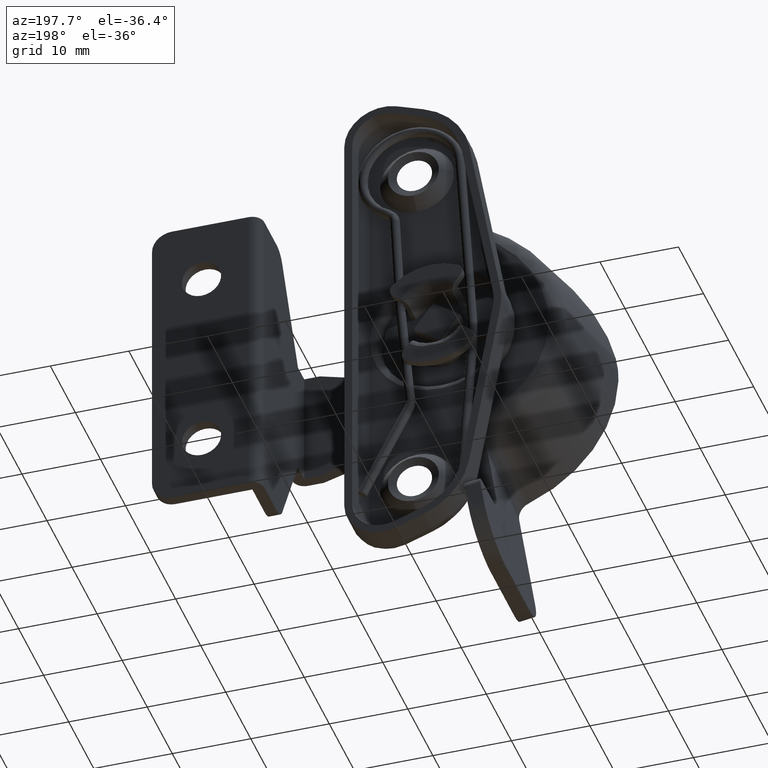
[diagram: clean part render]
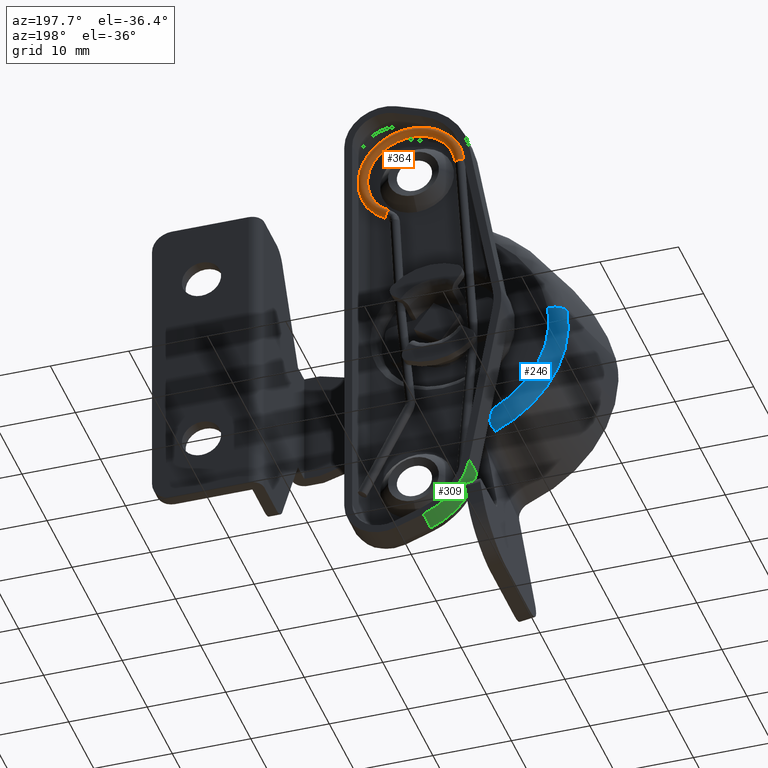
[diagram: same view with three faces highlighted in distinct colors, each labeled with its STEP entity id]
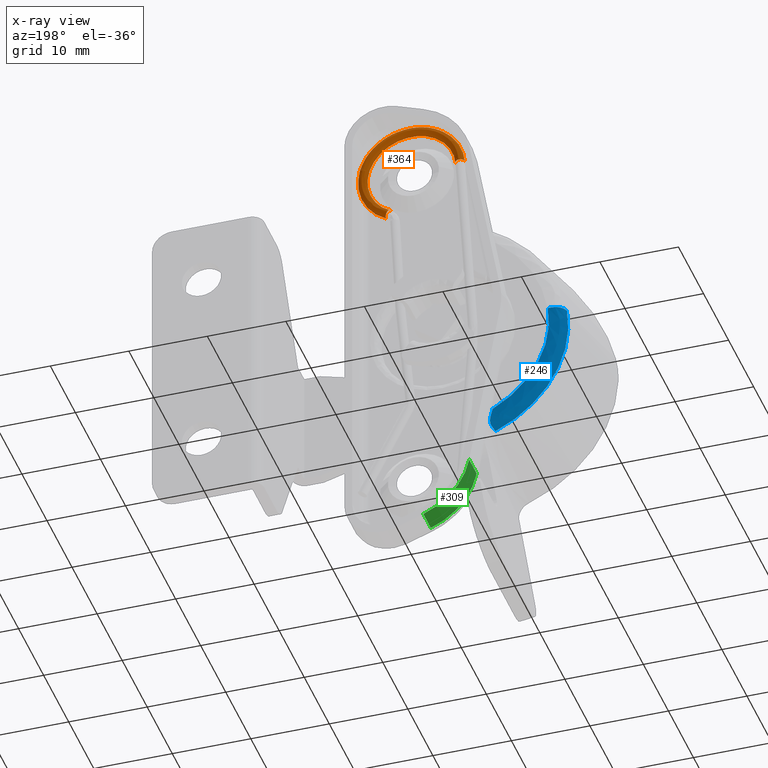
[diagram: x-ray of the same camera — body ghosted, the three highlighted faces saturated]
A machine part, auxiliary view with three faces highlighted in distinct colors.
The next image is the same camera in x-ray (body ghosted, the three faces saturated) — at least one of them is partly hidden behind the body in this view.
Their STEP definitions:

[orange] entity #364 — the highlighted face is a freeform B-spline surface patch.
#364=ADVANCED_FACE('',(#2195),#2194,.T.);
#2194=( BOUNDED_SURFACE() B_SPLINE_SURFACE( 2,2,((#4218,#4219,#4220,#4221,#4222,#4223,#4224),(#4225,#4226,#4227,#4228,#4229,#4230,#4231),(#4232,#4233,#4234,#4235,#4236,#4237,#4238),(#4239,#4240,#4241,#4242,#4243,#4244,#4245),(#4246,#4247,#4248,#4249,#4250,#4251,#4252)), .UNSPECIFIED.,.F.,.F.,.F.) B_SPLINE_SURFACE_WITH_KNOTS((3,2,3),(3,2,2,3),(1.77635683940E-15,1.57079632679E+00,3.14159265359E+00),(5.07392071400E-01,1.57079632679E+00,3.14159265359E+00,4.64179921726E+00), .UNSPECIFIED. ) GEOMETRIC_REPRESENTATION_ITEM() RATIONAL_B_SPLINE_SURFACE(((8.71902212440E-01,8.01715925897E-01,1.00000000000E+00,7.07106781187E-01,1.00000000000E+00,7.20269062370E-01,9.74858432901E-01),(6.16527966948E-01,5.66898767787E-01,7.07106781187E-01,5.00000000000E-01,7.07106781187E-01,5.09307138281E-01,6.89329008601E-01),(8.71902212440E-01,8.01715925897E-01,1.00000000000E+00,7.07106781187E-01,1.00000000000E+00,7.20269062370E-01,9.74858432901E-01),(6.16527966948E-01,5.66898767787E-01,7.07106781187E-01,5.00000000000E-01,7.07106781187E-01,5.09307138281E-01,6.89329008601E-01),(8.71902212440E-01,8.01715925897E-01,1.00000000000E+00,7.07106781187E-01,1.00000000000E+00,7.20269062370E-01,9.74858432901E-01))) REPRESENTATION_ITEM('') SURFACE() );
#2195=FACE_OUTER_BOUND('',#4253,.T.);
#4218=CARTESIAN_POINT('',(-1.55743589744E+01,6.10000000000E+00,1.69137457477E+01));
#4219=CARTESIAN_POINT('',(-1.20000000000E+01,6.10000000000E+00,1.88397579854E+01));
#4220=CARTESIAN_POINT('',(-1.20000000000E+01,6.10000000000E+00,2.29000000000E+01));
#4221=CARTESIAN_POINT('',(-1.20000000000E+01,6.10000000000E+00,2.97000000000E+01));
#4222=CARTESIAN_POINT('',(-1.88000000000E+01,6.10000000000E+00,2.97000000000E+01));
#4223=CARTESIAN_POINT('',(-2.51757361788E+01,6.10000000000E+00,2.97000000000E+01));
#4224=CARTESIAN_POINT('',(-2.55859132420E+01,6.10000000000E+00,2.33374716819E+01));
#4225=CARTESIAN_POINT('',(-1.55743589744E+01,6.70000000000E+00,1.69137457477E+01));
#4226=CARTESIAN_POINT('',(-1.20000000000E+01,6.70000000000E+00,1.88397579854E+01));
#4227=CARTESIAN_POINT('',(-1.20000000000E+01,6.70000000000E+00,2.29000000000E+01));
#4228=CARTESIAN_POINT('',(-1.20000000000E+01,6.70000000000E+00,2.97000000000E+01));
#4229=CARTESIAN_POINT('',(-1.88000000000E+01,6.70000000000E+00,2.97000000000E+01));
#4230=CARTESIAN_POINT('',(-2.51757361788E+01,6.70000000000E+00,2.97000000000E+01));
#4231=CARTESIAN_POINT('',(-2.55859132420E+01,6.70000000000E+00,2.33374716819E+01));
#4232=CARTESIAN_POINT('',(-1.58589743590E+01,6.70000000000E+00,1.74419446523E+01));
#4233=CARTESIAN_POINT('',(-1.26000000000E+01,6.70000000000E+00,1.91980146337E+01));
#4234=CARTESIAN_POINT('',(-1.26000000000E+01,6.70000000000E+00,2.29000000000E+01));
#4235=CARTESIAN_POINT('',(-1.26000000000E+01,6.70000000000E+00,2.91000000000E+01));
#4236=CARTESIAN_POINT('',(-1.88000000000E+01,6.70000000000E+00,2.91000000000E+01));
#4237=CARTESIAN_POINT('',(-2.46131712218E+01,6.70000000000E+00,2.91000000000E+01));
#4238=CARTESIAN_POINT('',(-2.49871561912E+01,6.70000000000E+00,2.32988712394E+01));
#4239=CARTESIAN_POINT('',(-1.61435897436E+01,6.70000000000E+00,1.79701435569E+01));
#4240=CARTESIAN_POINT('',(-1.32000000000E+01,6.70000000000E+00,1.95562712821E+01));
#4241=CARTESIAN_POINT('',(-1.32000000000E+01,6.70000000000E+00,2.29000000000E+01));
#4242=CARTESIAN_POINT('',(-1.32000000000E+01,6.70000000000E+00,2.85000000000E+01));
#4243=CARTESIAN_POINT('',(-1.88000000000E+01,6.70000000000E+00,2.85000000000E+01));
#4244=CARTESIAN_POINT('',(-2.40506062649E+01,6.70000000000E+00,2.85000000000E+01));
#4245=CARTESIAN_POINT('',(-2.43883991404E+01,6.70000000000E+00,2.32602707969E+01));
#4246=CARTESIAN_POINT('',(-1.61435897436E+01,6.10000000000E+00,1.79701435569E+01));
#4247=CARTESIAN_POINT('',(-1.32000000000E+01,6.10000000000E+00,1.95562712821E+01));
#4248=CARTESIAN_POINT('',(-1.32000000000E+01,6.10000000000E+00,2.29000000000E+01));
#4249=CARTESIAN_POINT('',(-1.32000000000E+01,6.10000000000E+00,2.85000000000E+01));
#4250=CARTESIAN_POINT('',(-1.88000000000E+01,6.10000000000E+00,2.85000000000E+01));
#4251=CARTESIAN_POINT('',(-2.40506062649E+01,6.10000000000E+00,2.85000000000E+01));
#4252=CARTESIAN_POINT('',(-2.43883991404E+01,6.10000000000E+00,2.32602707969E+01));
#4253=EDGE_LOOP('',(#5371,#5372,#5373,#5374));
#5371=ORIENTED_EDGE('',*,*,#6017,.F.);
#5372=ORIENTED_EDGE('',*,*,#6014,.T.);
#5373=ORIENTED_EDGE('',*,*,#6013,.T.);
#5374=ORIENTED_EDGE('',*,*,#6016,.F.);
#6013=EDGE_CURVE('',#9038,#9037,#9057,.T.);
#6014=EDGE_CURVE('',#9063,#9038,#9064,.T.);
#6016=EDGE_CURVE('',#9070,#9037,#9077,.T.);
#6017=EDGE_CURVE('',#9063,#9070,#9083,.T.);
#9037=VERTEX_POINT('',#11681);
#9038=VERTEX_POINT('',#11682);
#9057=CIRCLE('',#11694,6.00000000000E-01);
#9063=VERTEX_POINT('',#11695);
#9064=(BOUNDED_CURVE() B_SPLINE_CURVE(2,(#11696,#11697,#11698,#11699,#11700,#11701,#11702),.UNSPECIFIED.,.F.,.F.) B_SPLINE_CURVE_WITH_KNOTS((3,2,2,3),(5.07392075625E-01,1.57079632679E+00,3.14159265359E+00,4.64179958428E+00),.UNSPECIFIED.) CURVE() GEOMETRIC_REPRESENTATION_ITEM() RATIONAL_B_SPLINE_CURVE((8.71902211883E-01,8.01715926685E-01,1.00000000000E+00,7.07106781187E-01,1.00000000000E+00,7.20268993936E-01,9.74858557468E-01)) REPRESENTATION_ITEM('') );
#9070=VERTEX_POINT('',#11703);
#9077=(BOUNDED_CURVE() B_SPLINE_CURVE(2,(#11708,#11709,#11710,#11711,#11712,#11713,#11714),.UNSPECIFIED.,.F.,.F.) B_SPLINE_CURVE_WITH_KNOTS((3,2,2,3),(5.07392071400E-01,1.57079632679E+00,3.14159265359E+00,4.64179920520E+00),.UNSPECIFIED.) CURVE() GEOMETRIC_REPRESENTATION_ITEM() RATIONAL_B_SPLINE_CURVE((8.71902212440E-01,8.01715925897E-01,1.00000000000E+00,7.07106781187E-01,1.00000000000E+00,7.20269064620E-01,9.74858428806E-01)) REPRESENTATION_ITEM('') );
#9083=CIRCLE('',#11718,6.00000000000E-01);
#11681=CARTESIAN_POINT('',(-2.55859133925E+01,6.10000000000E+00,2.33374693472E+01));
#11682=CARTESIAN_POINT('',(-2.43883992644E+01,6.10000000000E+00,2.32602688742E+01));
#11691=CARTESIAN_POINT('',(-2.49871563284E+01,6.10000000000E+00,2.32988691107E+01));
#11692=DIRECTION('',(6.43337275280E-02,-1.54074395551E-33,9.97928440071E-01));
#11693=DIRECTION('',(9.97928440071E-01,-1.22460635382E-16,-6.43337275280E-02));
#11694=AXIS2_PLACEMENT_3D('',#11691,#11692,#11693);
#11695=CARTESIAN_POINT('',(-1.61435897436E+01,6.10000000000E+00,1.79701435569E+01));
#11696=CARTESIAN_POINT('',(-1.61435897221E+01,6.10000000000E+00,1.79701435685E+01));
#11697=CARTESIAN_POINT('',(-1.32000000000E+01,6.10000000000E+00,1.95562712986E+01));
#11698=CARTESIAN_POINT('',(-1.32000000000E+01,6.10000000000E+00,2.29000000000E+01));
#11699=CARTESIAN_POINT('',(-1.32000000000E+01,6.10000000000E+00,2.85000000000E+01));
#11700=CARTESIAN_POINT('',(-1.88000000000E+01,6.10000000000E+00,2.85000000000E+01));
#11701=CARTESIAN_POINT('',(-2.40506080483E+01,6.10000000000E+00,2.85000000000E+01));
#11702=CARTESIAN_POINT('',(-2.43883992626E+01,6.10000000000E+00,2.32602689027E+01));
#11703=CARTESIAN_POINT('',(-1.55743589744E+01,6.10000000000E+00,1.69137457477E+01));
#11708=CARTESIAN_POINT('',(-1.55743589744E+01,6.10000000000E+00,1.69137457477E+01));
#11709=CARTESIAN_POINT('',(-1.20000000000E+01,6.10000000000E+00,1.88397579854E+01));
#11710=CARTESIAN_POINT('',(-1.20000000000E+01,6.10000000000E+00,2.29000000000E+01));
#11711=CARTESIAN_POINT('',(-1.20000000000E+01,6.10000000000E+00,2.97000000000E+01));
#11712=CARTESIAN_POINT('',(-1.88000000000E+01,6.10000000000E+00,2.97000000000E+01));
#11713=CARTESIAN_POINT('',(-2.51757361076E+01,6.10000000000E+00,2.97000000000E+01));
#11714=CARTESIAN_POINT('',(-2.55859132371E+01,6.10000000000E+00,2.33374717576E+01));
#11715=CARTESIAN_POINT('',(-1.58589743590E+01,6.10000000000E+00,1.74419446523E+01));
#11716=DIRECTION('',(-8.80331507698E-01,3.62262315944E-14,-4.74358974359E-01));
#11717=DIRECTION('',(-4.74358974359E-01,-1.22460635382E-16,8.80331507698E-01));
#11718=AXIS2_PLACEMENT_3D('',#11715,#11716,#11717);

[blue] entity #246 — the highlighted face is a freeform B-spline surface patch.
#246=ADVANCED_FACE('',(#1007),#1006,.T.);
#1006=( BOUNDED_SURFACE() B_SPLINE_SURFACE( 2,2,((#3025,#3026,#3027,#3028,#3029),(#3030,#3031,#3032,#3033,#3034),(#3035,#3036,#3037,#3038,#3039)), .UNSPECIFIED.,.F.,.F.,.F.) B_SPLINE_SURFACE_WITH_KNOTS((3,3),(3,2,3),(0.00000000000E+00,1.00000000000E+00),(0.00000000000E+00,5.00000000000E-01,1.00000000000E+00), .UNSPECIFIED. ) GEOMETRIC_REPRESENTATION_ITEM() RATIONAL_B_SPLINE_SURFACE(((1.00000000000E+00,7.78479334048E-01,1.00000000000E+00,7.78479334048E-01,1.00000000000E+00),(7.80991384920E-01,6.07985653229E-01,7.80991384920E-01,6.07985653229E-01,7.80991384920E-01),(1.00000000000E+00,7.78479334048E-01,1.00000000000E+00,7.78479334048E-01,1.00000000000E+00))) REPRESENTATION_ITEM('') SURFACE() );
#1007=FACE_OUTER_BOUND('',#3040,.T.);
#3025=CARTESIAN_POINT('',(-2.74664611073E+01,4.24120294158E-01,-1.39196001733E+01));
#3026=CARTESIAN_POINT('',(-2.73414618356E+01,2.00000000000E+00,-1.36013065185E+01));
#3027=CARTESIAN_POINT('',(-2.67520098642E+01,2.00000000000E+00,-1.21003471955E+01));
#3028=CARTESIAN_POINT('',(-2.61625578928E+01,2.00000000000E+00,-1.05993878724E+01));
#3029=CARTESIAN_POINT('',(-2.60375586211E+01,4.24120294158E-01,-1.02810942176E+01));
#3030=CARTESIAN_POINT('',(-3.85976621410E+01,4.24120294158E-01,-9.54819030725E+00));
#3031=CARTESIAN_POINT('',(-3.82181303672E+01,2.00000000000E+00,-9.32985584708E+00));
#3032=CARTESIAN_POINT('',(-3.64283939222E+01,2.00000000000E+00,-8.30026842494E+00));
#3033=CARTESIAN_POINT('',(-3.46386574771E+01,2.00000000000E+00,-7.27068100280E+00));
#3034=CARTESIAN_POINT('',(-3.42591257033E+01,4.24120294158E-01,-7.05234654263E+00));
#3035=CARTESIAN_POINT('',(-3.67809453881E+01,4.24120294158E-01,2.27180973117E+00));
#3036=CARTESIAN_POINT('',(-3.64429557138E+01,2.00000000000E+00,2.21986121157E+00));
#3037=CARTESIAN_POINT('',(-3.48491169895E+01,2.00000000000E+00,1.97489052609E+00));
#3038=CARTESIAN_POINT('',(-3.32552782652E+01,2.00000000000E+00,1.72991984061E+00));
#3039=CARTESIAN_POINT('',(-3.29172885909E+01,4.24120294158E-01,1.67797132101E+00));
#3040=EDGE_LOOP('',(#4803,#4804,#4805,#4806));
#4803=ORIENTED_EDGE('',*,*,#5766,.T.);
#4804=ORIENTED_EDGE('',*,*,#5607,.F.);
#4805=ORIENTED_EDGE('',*,*,#5634,.T.);
#4806=ORIENTED_EDGE('',*,*,#5596,.F.);
#5596=EDGE_CURVE('',#6293,#6279,#6300,.T.);
#5607=EDGE_CURVE('',#6367,#6135,#6374,.T.);
#5634=EDGE_CURVE('',#6367,#6279,#6553,.T.);
#5766=EDGE_CURVE('',#6293,#6135,#7439,.T.);
#6135=VERTEX_POINT('',#9765);
#6279=VERTEX_POINT('',#9895);
#6293=VERTEX_POINT('',#9911);
#6300=(BOUNDED_CURVE() B_SPLINE_CURVE(3,(#9916,#9917,#9918,#9919,#9920,#9921,#9922,#9923,#9924,#9925,#9926,#9927,#9928,#9929,#9930,#9931),.UNSPECIFIED.,.F.,.F.) B_SPLINE_CURVE_WITH_KNOTS((4,2,2,2,2,2,2,4),(4.33680868994E-19,3.90522656989E-04,7.81045313978E-04,1.17156797097E-03,1.56209062796E-03,1.95261328494E-03,2.34313594193E-03,3.12418125591E-03),.UNSPECIFIED.) CURVE() GEOMETRIC_REPRESENTATION_ITEM() RATIONAL_B_SPLINE_CURVE((1.00000000000E+00,1.00000000000E+00,1.00000000000E+00,1.00000000000E+00,1.00000000000E+00,1.00000000000E+00,1.00000000000E+00,1.00000000000E+00,1.00000000000E+00,1.00000000000E+00,1.00000000000E+00,1.00000000000E+00,1.00000000000E+00,1.00000000000E+00,1.00000000000E+00,1.00000000000E+00)) REPRESENTATION_ITEM('') );
#6367=VERTEX_POINT('',#10006);
#6374=CIRCLE('',#10014,2.00000000000E+00);
#6553=CIRCLE('',#10128,1.30000000000E+01);
#7439=CIRCLE('',#10696,1.49543527278E+01);
#9765=CARTESIAN_POINT('',(-3.67807867464E+01,4.24859288662E-01,2.27178534791E+00));
#9895=CARTESIAN_POINT('',(-2.78211669948E+01,2.00000000000E+00,-1.16238554197E+01));
#9911=CARTESIAN_POINT('',(-2.76859719750E+01,4.24859288662E-01,-1.38312106559E+01));
#9916=CARTESIAN_POINT('',(-2.76859719750E+01,4.24859288662E-01,-1.38312106559E+01));
#9917=CARTESIAN_POINT('',(-2.76657352675E+01,5.52112159340E-01,-1.38096198568E+01));
#9918=CARTESIAN_POINT('',(-2.76298864742E+01,6.75128504003E-01,-1.37813423817E+01));
#9919=CARTESIAN_POINT('',(-2.75480076540E+01,9.09401994296E-01,-1.37055299980E+01));
#9920=CARTESIAN_POINT('',(-2.75018925224E+01,1.02058272843E+00,-1.36583464817E+01));
#9921=CARTESIAN_POINT('',(-2.74203441245E+01,1.23392407023E+00,-1.35342280192E+01));
#9922=CARTESIAN_POINT('',(-2.73862003527E+01,1.33482764576E+00,-1.34569438635E+01));
#9923=CARTESIAN_POINT('',(-2.73557254752E+01,1.51396673785E+00,-1.32733167246E+01));
#9924=CARTESIAN_POINT('',(-2.73603043539E+01,1.59370657793E+00,-1.31643575816E+01));
#9925=CARTESIAN_POINT('',(-2.73992256123E+01,1.72129302706E+00,-1.29439567499E+01));
#9926=CARTESIAN_POINT('',(-2.74319978176E+01,1.77243721133E+00,-1.28297910472E+01));
#9927=CARTESIAN_POINT('',(-2.75083291161E+01,1.85787942748E+00,-1.25958908381E+01));
#9928=CARTESIAN_POINT('',(-2.75510746258E+01,1.89125792823E+00,-1.24785956367E+01));
#9929=CARTESIAN_POINT('',(-2.76790367819E+01,1.97151174605E+00,-1.21225837582E+01));
#9930=CARTESIAN_POINT('',(-2.77666569480E+01,2.00000000000E+00,-1.18784588315E+01));
#9931=CARTESIAN_POINT('',(-2.78211669948E+01,2.00000000000E+00,-1.16238554197E+01));
#10006=CARTESIAN_POINT('',(-3.48491169895E+01,2.00000000000E+00,1.97489052588E+00));
#10011=CARTESIAN_POINT('',(-3.48491169895E+01,-5.68121938382E-14,1.97489052588E+00));
#10012=DIRECTION('',(1.51914655837E-01,0.00000000000E+00,9.88393614580E-01));
#10013=DIRECTION('',(-9.88393614580E-01,-0.00000000000E+00,1.51914655837E-01));
#10014=AXIS2_PLACEMENT_3D('',#10011,#10012,#10013);
#10125=CARTESIAN_POINT('',(-2.20000000000E+01,2.00000000000E+00,0.00000000000E+00));
#10126=DIRECTION('',(0.00000000000E+00,-1.00000000000E+00,0.00000000000E+00));
#10127=DIRECTION('',(-1.51914655832E-01,-0.00000000000E+00,-9.88393614580E-01));
#10128=AXIS2_PLACEMENT_3D('',#10125,#10126,#10127);
#10693=CARTESIAN_POINT('',(-2.20000000000E+01,4.24859288662E-01,0.00000000000E+00));
#10694=DIRECTION('',(-0.00000000000E+00,1.00000000000E+00,0.00000000000E+00));
#10695=DIRECTION('',(-1.51914655832E-01,-0.00000000000E+00,-9.88393614580E-01));
#10696=AXIS2_PLACEMENT_3D('',#10693,#10694,#10695);

[green] entity #309 — the highlighted cylindrical surface (partial cylindrical patch) has radius 9 mm, axis along (-0, -1, -0).
#309=ADVANCED_FACE('',(#1643),#1642,.T.);
#1642=CYLINDRICAL_SURFACE('',#3596,9.00000000000E+00);
#1643=FACE_OUTER_BOUND('',#3597,.T.);
#3593=CARTESIAN_POINT('',(-1.80482180000E+01,-9.91500000000E+02,-2.20259901917E+01));
#3594=DIRECTION('',(-0.00000000000E+00,-1.00000000000E+00,-0.00000000000E+00));
#3595=DIRECTION('',(-0.00000000000E+00,-0.00000000000E+00,-1.00000000000E+00));
#3596=AXIS2_PLACEMENT_3D('',#3593,#3594,#3595);
#3597=EDGE_LOOP('',(#5120,#5121,#5122,#5123));
#5120=ORIENTED_EDGE('',*,*,#5919,.T.);
#5121=ORIENTED_EDGE('',*,*,#5920,.F.);
#5122=ORIENTED_EDGE('',*,*,#5921,.F.);
#5123=ORIENTED_EDGE('',*,*,#5848,.F.);
#5848=EDGE_CURVE('',#7967,#7947,#7975,.T.);
#5919=EDGE_CURVE('',#7967,#8444,#8451,.T.);
#5920=EDGE_CURVE('',#8457,#8444,#8458,.T.);
#5921=EDGE_CURVE('',#7947,#8457,#8464,.T.);
#7947=VERTEX_POINT('',#11006);
#7967=VERTEX_POINT('',#11018);
#7975=CIRCLE('',#11027,9.00000000000E+00);
#8444=VERTEX_POINT('',#11331);
#8451=LINE('',#11335,#11336);
#8457=VERTEX_POINT('',#11338);
#8458=CIRCLE('',#11342,9.00000000000E+00);
#8464=LINE('',#11343,#11344);
#11006=CARTESIAN_POINT('',(-2.10642890000E+01,5.50000000000E+00,-3.05055741917E+01));
#11018=CARTESIAN_POINT('',(-2.69067707957E+01,5.50000000000E+00,-2.36153430053E+01));
#11024=CARTESIAN_POINT('',(-1.80482180000E+01,5.50000000000E+00,-2.20259901917E+01));
#11025=DIRECTION('',(0.00000000000E+00,-1.00000000000E+00,0.00000000000E+00));
#11026=DIRECTION('',(-0.00000000000E+00,-0.00000000000E+00,-1.00000000000E+00));
#11027=AXIS2_PLACEMENT_3D('',#11024,#11025,#11026);
#11331=CARTESIAN_POINT('',(-2.69067707957E+01,8.50000000000E+00,-2.36153430053E+01));
#11335=CARTESIAN_POINT('',(-2.69067707957E+01,5.50000000000E+00,-2.36153430053E+01));
#11336=VECTOR('',#11337,3.00000000000E+00);
#11337=DIRECTION('',(0.00000000000E+00,1.00000000000E+00,0.00000000000E+00));
#11338=CARTESIAN_POINT('',(-2.10642890000E+01,8.50000000000E+00,-3.05055741917E+01));
#11339=CARTESIAN_POINT('',(-1.80482180000E+01,8.50000000000E+00,-2.20259901917E+01));
#11340=DIRECTION('',(-0.00000000000E+00,1.00000000000E+00,0.00000000000E+00));
#11341=DIRECTION('',(-0.00000000000E+00,-0.00000000000E+00,-1.00000000000E+00));
#11342=AXIS2_PLACEMENT_3D('',#11339,#11340,#11341);
#11343=CARTESIAN_POINT('',(-2.10642890000E+01,5.50000000000E+00,-3.05055741917E+01));
#11344=VECTOR('',#11345,3.00000000000E+00);
#11345=DIRECTION('',(0.00000000000E+00,1.00000000000E+00,0.00000000000E+00));